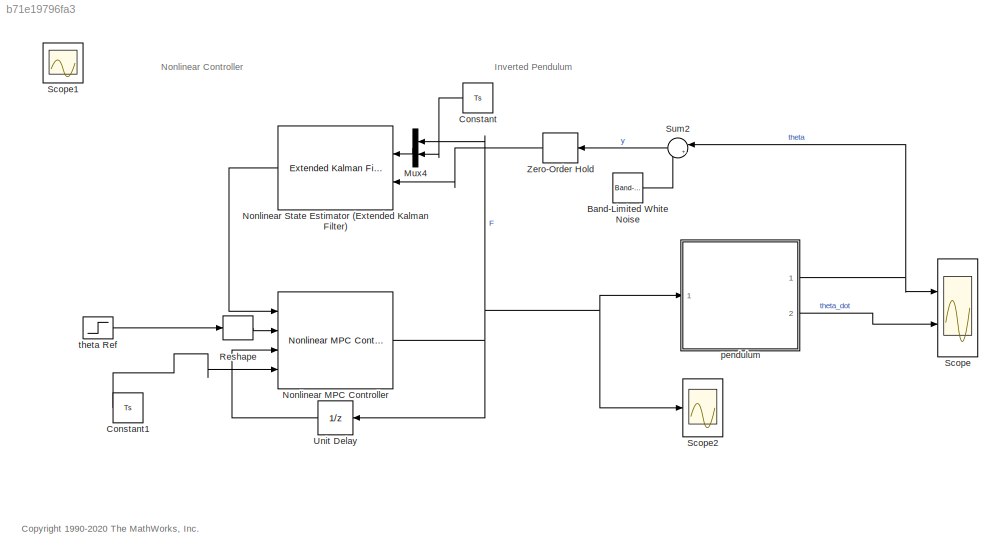
MODEL slx_b71e19796fa3
KIND model
CONFIG AbsTol = auto
CONFIG EnableMultiTasking = on
CONFIG FixedStep = auto
CONFIG MaxStep = 1e-3
CONFIG MinStep = auto
CONFIG RelTol = 1e-3
CONFIG SampleTimeConstraint = Unconstrained
CONFIG SolverName = ode15s
CONFIG StartTime = 0.0
CONFIG StopTime = 20
BLOCK [Reference] Band-Limited White Noise  REF=simulink/Sources/Band-Limited
White Noise
  Ports = [0, 1]
  SourceBlock = simulink/Sources/Band-Limited\nWhite Noise
  SourceProductBaseCode = SL
  SourceType = Band-Limited White Noise.
BLOCK [Constant] Constant
  Value = Ts
BLOCK [Constant] Constant1
  Value = Ts
BLOCK [Mux] Mux4
  DisplayOption = bar
  Inputs = 2
  NameLocation = top
  Ports = [2, 1]
BLOCK [Reference] Nonlinear MPC Controller  REF=mpclib/Nonlinear MPC Controller  (lib defined in mdl_ae329e0e0455)
  Ports = [4, 1]
  SCDEnableBlockLinearizationSpecification = on
  SourceBlock = mpclib/Nonlinear MPC Controller
  SourceProductBaseCode = MP
  SourceType = NonlinearMPC
BLOCK [Reference] Nonlinear State Estimator (Extended Kalman Filter)  REF=sharedTrackingLibrary/Extended Kalman Filter
  Ports = [2, 1]
  SourceBlock = sharedTrackingLibrary/Extended Kalman Filter
  SourceProductBaseCode = CT,DR,TF,ID,LP,NV,AR,RO,RR,UV,VE
  SourceType = Extended Kalman Filter
BLOCK [Reshape] Reshape
  OutputDimensionality = Row vector (2-D)
  Ports = [1, 1]
BLOCK [Scope] Scope
  Floating = off
  NumInputPorts = 2
  Ports = [2]
  ScopeSpecificationString = Simulink.scopes.TimeScopeBlockCfg('CurrentConfiguration', extmgr.ConfigurationSet(extmgr.Configuration('Core','General UI',true),extmgr.Configuration('Core','Source UI',true),extmgr.Configuration('Sources','WiredSimulink',true,'DataLoggingVariableName','ScopeData1'),extmgr.Configuration('Visuals','Time Domain',true),extmgr.Configuration('Tools','Plot Navigation',true),extmgr.Configuration('Tools',...<+114ch>
BLOCK [Scope] Scope1
  Floating = off
  IOType = viewer
  NumInputPorts = 1
  Ports = []
  ScopeSpecificationString = Simulink.scopes.TimeScopeBlockCfg('CurrentConfiguration', extmgr.ConfigurationSet(extmgr.Configuration('Core','General UI',true),extmgr.Configuration('Core','Source UI',true),extmgr.Configuration('Sources','WiredSimulink',true,'DataLoggingMaxPoints','7500','DataLoggingLimitDataPoints',true,'DataLoggingSaveFormat','Array','DataLoggingDecimation','1','DataLoggingDecimateData',true),extmgr.Configurat...<+1709ch>
BLOCK [Scope] Scope2
  Floating = off
  NameLocation = top
  NumInputPorts = 1
  Ports = [1]
  ScopeSpecificationString = Simulink.scopes.TimeScopeBlockCfg('CurrentConfiguration', extmgr.ConfigurationSet(extmgr.Configuration('Core','General UI',true),extmgr.Configuration('Core','Source UI',true),extmgr.Configuration('Sources','WiredSimulink',true,'DataLoggingSaveFormat','StructureWithTime','DataLoggingDecimation','1','DataLoggingVariableName','ScopeData1'),extmgr.Configuration('Visuals','Time Domain',true,'Serialized...<+1542ch>
BLOCK [Sum] Sum2
  Inputs = |++
  Ports = [2, 1]
BLOCK [UnitDelay] Unit Delay
  HasFrameUpgradeWarning = on
  SampleTime = -1
BLOCK [ZeroOrderHold] Zero-Order Hold
  SampleTime = Ts
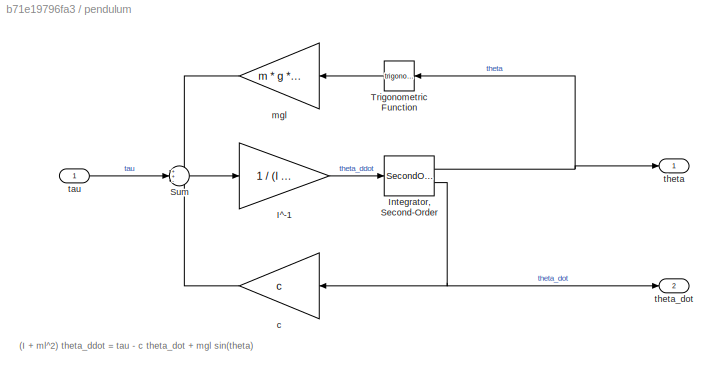
BLOCK [SubSystem] pendulum
  Ports = [1, 2]
  RequestExecContextInheritance = off
BLOCK [Gain] pendulum/I^-1
  Gain = 1 / (l + m * l^2)
BLOCK [SecondOrderIntegrator] pendulum/Integrator, Second-Order
  ICDXDT = theta_dot0
  ICX = theta0
  LowerLimitX = 0
  Ports = [1, 2]
  StateNameDXDT = 'theta_dot'
  StateNameX = 'theta'
  UpperLimitX = 1
BLOCK [Sum] pendulum/Sum
  Inputs = ++-
  Ports = [3, 1]
BLOCK [Trigonometry] pendulum/Trigonometric Function
  NameLocation = top
  Ports = [1, 1]
BLOCK [Gain] pendulum/c
  Gain = c
  NameLocation = top
BLOCK [Gain] pendulum/mgl
  Gain = m * g * l
  NameLocation = top
BLOCK [Inport] pendulum/tau
BLOCK [Outport] pendulum/theta
  VectorParamsAs1DForOutWhenUnconnected = off
BLOCK [Outport] pendulum/theta_dot
  Port = 2
  VectorParamsAs1DForOutWhenUnconnected = off
BLOCK [Step] theta Ref
  After = pi
  Before = pi
  SampleTime = 0
ANNOTATION (root): <copyright redacted>
ANNOTATION (root): Inverted Pendulum
ANNOTATION (root): Nonlinear Controller
ANNOTATION pendulum: (I + ml^2) theta_ddot = tau - c theta_dot + mgl sin(theta)
LINE Band-Limited White Noise:1 -> Sum2:2
LINE Constant1:1 -> Nonlinear MPC Controller:4
LINE Constant:1 -> Mux4:2
LINE Mux4:1 -> Nonlinear State Estimator (Extended Kalman Filter):1
NET Nonlinear MPC Controller:1 -> Mux4:1, Scope2:1, Unit Delay:1, pendulum:1
LINE Nonlinear State Estimator (Extended Kalman Filter):1 -> Nonlinear MPC Controller:1
LINE Reshape:1 -> Nonlinear MPC Controller:2
LINE Sum2:1 -> Zero-Order Hold:1
LINE Unit Delay:1 -> Nonlinear MPC Controller:3
LINE Zero-Order Hold:1 -> Nonlinear State Estimator (Extended Kalman Filter):2
LINE pendulum/I^-1:1 -> pendulum/Integrator, Second-Order:1
NET pendulum/Integrator, Second-Order:1 -> pendulum/Trigonometric Function:1, pendulum/theta:1
NET pendulum/Integrator, Second-Order:2 -> pendulum/c:1, pendulum/theta_dot:1
LINE pendulum/Sum:1 -> pendulum/I^-1:1
LINE pendulum/Trigonometric Function:1 -> pendulum/mgl:1
LINE pendulum/c:1 -> pendulum/Sum:3
LINE pendulum/mgl:1 -> pendulum/Sum:1
LINE pendulum/tau:1 -> pendulum/Sum:2
NET pendulum:1 -> Scope:1, Sum2:1
LINE pendulum:2 -> Scope:2
LINE theta Ref:1 -> Reshape:1
note: NET lines group one-source signal fan-out (src -> all destinations, sorted); 1:1 wires keep LINE
